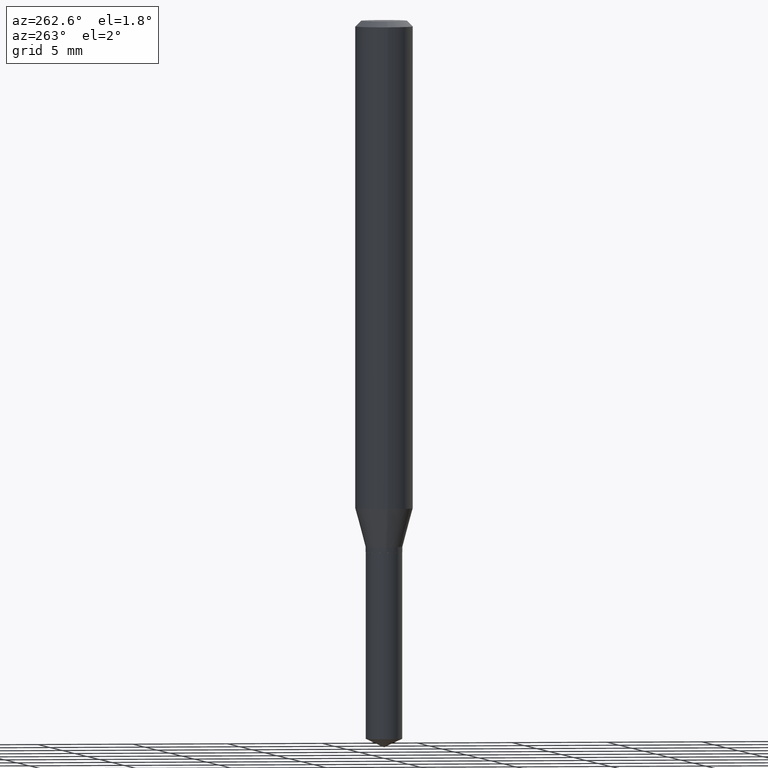
[diagram: clean part render]
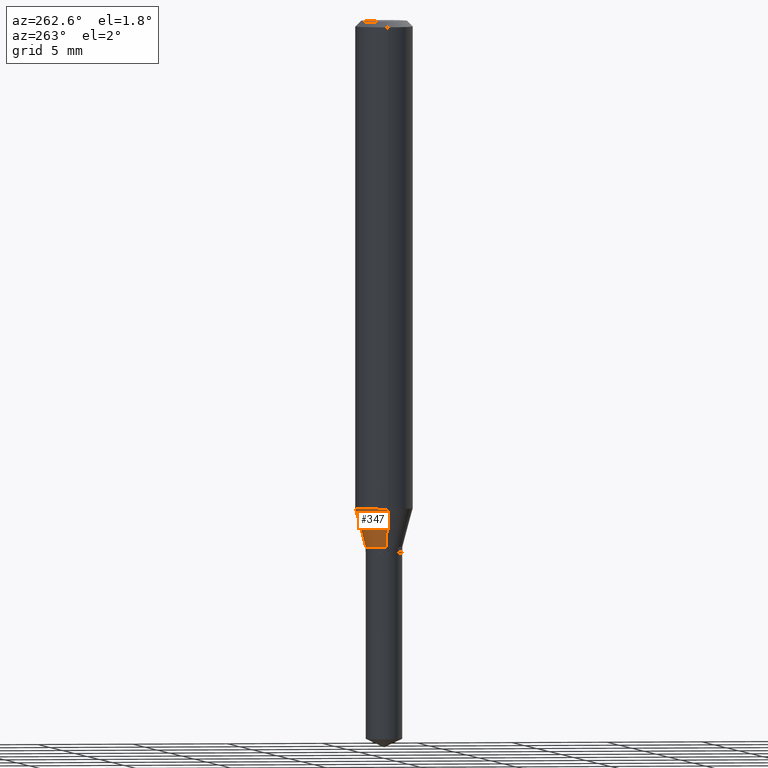
[diagram: same view with one face highlighted and labeled with its STEP entity id]
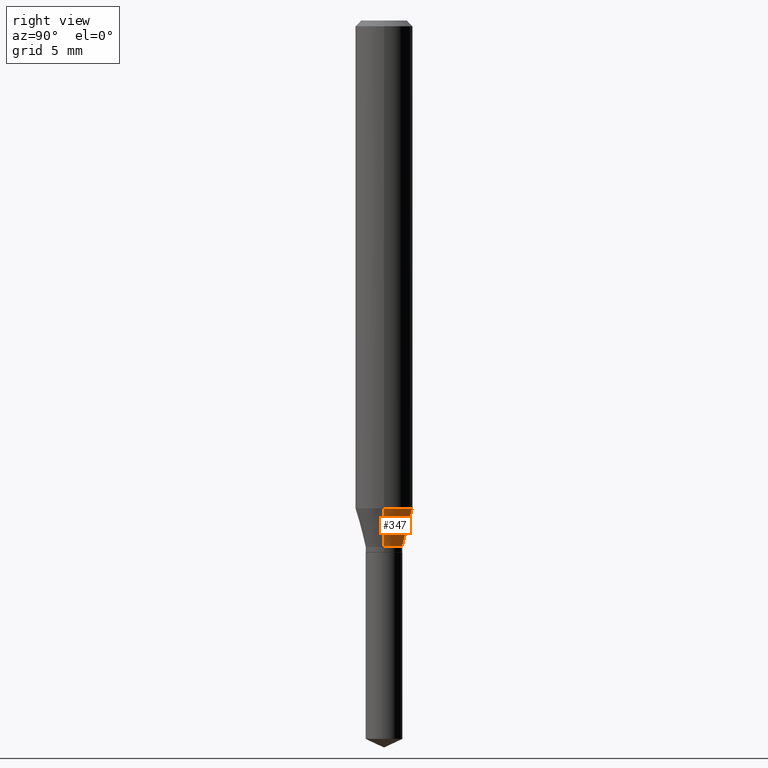
[diagram: same view with one face highlighted and labeled with its STEP entity id]
A machine part, auxiliary view. The second image highlights one B-rep face of the part: STEP entity #347.
A second angle (right view) of the same face is appended — the face is thin or edge-on in the first view.
In plain terms, the highlighted conical surface has half-angle 15 deg.
Its self-contained STEP definition (entity closure, byte-faithful):
#7 = LINE ( 'NONE', #291, #465 ) ;
#8 = ORIENTED_EDGE ( 'NONE', *, *, #96, .T. ) ;
#34 = EDGE_CURVE ( 'NONE', #182, #287, #217, .T. ) ;
#36 = VECTOR ( 'NONE', #72, 39.37007874015748854 ) ;
#53 = DIRECTION ( 'NONE',  ( -2.445468806185136597E-29, 3.491481338843145583E-15, 1.000000000000000000 ) ) ;
#54 = CARTESIAN_POINT ( 'NONE',  ( -0.03780000000000000027, -3.532241431347330370E-15, -1.083199999999999941 ) ) ;
#66 = CARTESIAN_POINT ( 'NONE',  ( -0.03780000000000000027, -3.513387432117577343E-15, -1.083199999999999941 ) ) ;
#72 = DIRECTION ( 'NONE',  ( -0.2588190451025211836, 5.211531920934547886E-15, 0.9659258262890679791 ) ) ;
#96 = EDGE_CURVE ( 'NONE', #204, #182, #167, .T. ) ;
#139 = EDGE_CURVE ( 'NONE', #204, #283, #7, .T. ) ;
#155 = FACE_OUTER_BOUND ( 'NONE', #447, .T. ) ;
#167 = CIRCLE ( 'NONE', #183, 0.03780000000000000027 ) ;
#175 = ORIENTED_EDGE ( 'NONE', *, *, #139, .F. ) ;
#182 = VERTEX_POINT ( 'NONE', #54 ) ;
#183 = AXIS2_PLACEMENT_3D ( 'NONE', #262, #421, #254 ) ;
#185 = CARTESIAN_POINT ( 'NONE',  ( 0.03780000000000000027, -4.045928575451436021E-15, -1.083199999999999941 ) ) ;
#194 = DIRECTION ( 'NONE',  ( 0.2588190451025211836, 1.565188264969622559E-15, 0.9659258262890679791 ) ) ;
#196 = DIRECTION ( 'NONE',  ( -2.445468806185136597E-29, 3.491481338843145583E-15, 1.000000000000000000 ) ) ;
#204 = VERTEX_POINT ( 'NONE', #185 ) ;
#217 = LINE ( 'NONE', #66, #36 ) ;
#225 = ORIENTED_EDGE ( 'NONE', *, *, #34, .T. ) ;
#231 = CARTESIAN_POINT ( 'NONE',  ( 2.648931810859739974E-29, -3.781972586234895215E-15, -1.083199999999999941 ) ) ;
#240 = AXIS2_PLACEMENT_3D ( 'NONE', #231, #196, #430 ) ;
#254 = DIRECTION ( 'NONE',  ( 1.000000000000000000, -6.982962677686271444E-15, 0.000000000000000000 ) ) ;
#262 = CARTESIAN_POINT ( 'NONE',  ( 2.648931810859739974E-29, -3.781972586234895215E-15, -1.083199999999999941 ) ) ;
#283 = VERTEX_POINT ( 'NONE', #476 ) ;
#285 = CARTESIAN_POINT ( 'NONE',  ( -0.05905000000000011628, -3.085501403575928068E-15, -1.003893920339161028 ) ) ;
#287 = VERTEX_POINT ( 'NONE', #285 ) ;
#291 = CARTESIAN_POINT ( 'NONE',  ( 0.03780000000000000027, -4.045928575451436021E-15, -1.083199999999999941 ) ) ;
#346 = DIRECTION ( 'NONE',  ( 1.000000000000000000, -6.982962677686266711E-15, 0.000000000000000000 ) ) ;
#347 = ADVANCED_FACE ( 'NONE', ( #155 ), #466, .T. ) ;
#380 = CARTESIAN_POINT ( 'NONE',  ( 2.454991266908324597E-29, -3.505076889042267956E-15, -1.003893920339161028 ) ) ;
#418 = ORIENTED_EDGE ( 'NONE', *, *, #448, .F. ) ;
#421 = DIRECTION ( 'NONE',  ( -2.445468806185136597E-29, 3.491481338843145583E-15, 1.000000000000000000 ) ) ;
#430 = DIRECTION ( 'NONE',  ( 1.000000000000000000, -6.982962677686271444E-15, 0.000000000000000000 ) ) ;
#436 = AXIS2_PLACEMENT_3D ( 'NONE', #380, #53, #346 ) ;
#447 = EDGE_LOOP ( 'NONE', ( #8, #225, #418, #175 ) ) ;
#448 = EDGE_CURVE ( 'NONE', #283, #287, #472, .T. ) ;
#465 = VECTOR ( 'NONE', #194, 39.37007874015748854 ) ;
#466 = CONICAL_SURFACE ( 'NONE', #240, 0.03780000000000000027, 0.2617993877991499074 ) ;
#472 = CIRCLE ( 'NONE', #436, 0.05905000000000011628 ) ;
#476 = CARTESIAN_POINT ( 'NONE',  ( 0.05905000000000011628, -3.917420835159643665E-15, -1.003893920339161028 ) ) ;